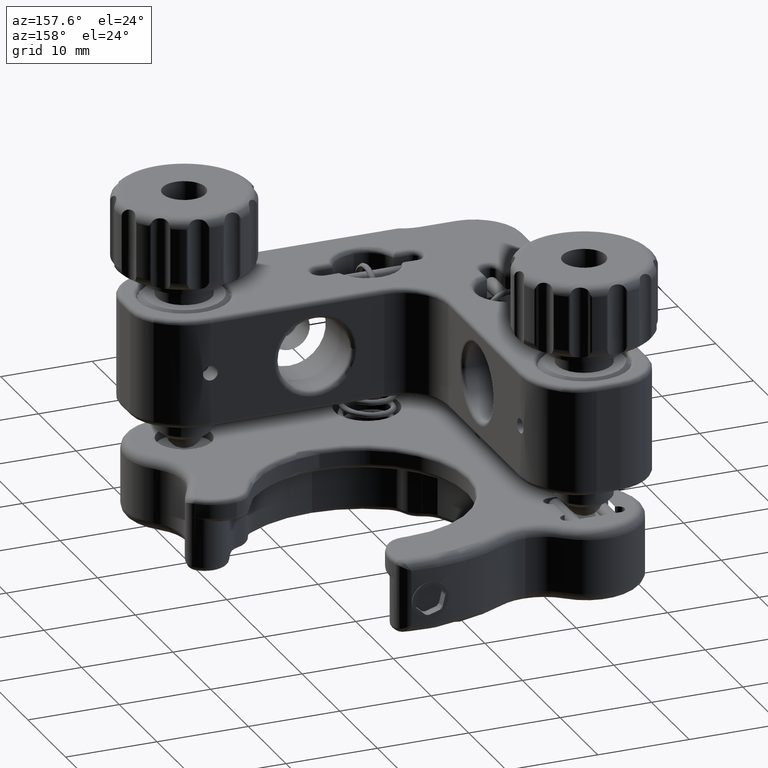
[diagram: clean part render]
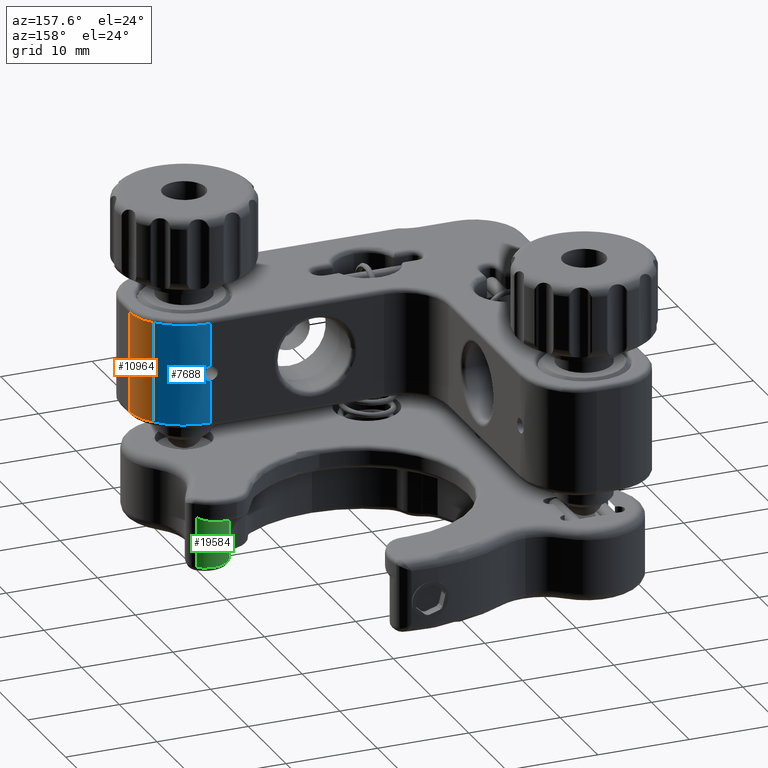
[diagram: same view with three faces highlighted in distinct colors, each labeled with its STEP entity id]
A machine part, auxiliary view with three faces highlighted in distinct colors.
Their STEP definitions:

[orange] entity #10964 — the highlighted cylindrical surface (partial cylindrical patch) has radius 5 mm, axis along (0, 0, 1).
#276 = LINE ( 'NONE', #14235, #3856 ) ;
#909 = CARTESIAN_POINT ( 'NONE',  ( -22.08220024130421422, 1.322875655532274930, 5.499999999999996447 ) ) ;
#1411 = CARTESIAN_POINT ( 'NONE',  ( -22.08220024130421422, 1.322875655532274042, -5.500000000000003553 ) ) ;
#1685 = VERTEX_POINT ( 'NONE', #5914 ) ;
#2959 = AXIS2_PLACEMENT_3D ( 'NONE', #15211, #12060, #3293 ) ;
#2986 = DIRECTION ( 'NONE',  ( 1.526985608128896422E-16, 6.608597787526282327E-17, 1.000000000000000000 ) ) ;
#3293 = DIRECTION ( 'NONE',  ( -1.000000000000000000, 1.301042606982607786E-16, 1.734723475976810546E-16 ) ) ;
#3583 = EDGE_CURVE ( 'NONE', #19852, #1685, #276, .T. ) ;
#3733 = EDGE_CURVE ( 'NONE', #19852, #22524, #17847, .T. ) ;
#3856 = VECTOR ( 'NONE', #7255, 1000.000000000000000 ) ;
#4984 = FACE_OUTER_BOUND ( 'NONE', #9783, .T. ) ;
#5914 = CARTESIAN_POINT ( 'NONE',  ( -17.08220024130422487, 1.322875655532276928, 5.499999999999995559 ) ) ;
#6081 = DIRECTION ( 'NONE',  ( 1.000000000000000000, -1.301042606982607786E-16, -1.734723475976810546E-16 ) ) ;
#6770 = CARTESIAN_POINT ( 'NONE',  ( -18.33220024130417158, 4.630064794362959368, -5.500000000000004441 ) ) ;
#7000 = ORIENTED_EDGE ( 'NONE', *, *, #16417, .T. ) ;
#7255 = DIRECTION ( 'NONE',  ( 1.526985608128896422E-16, 6.608597787526282327E-17, 1.000000000000000000 ) ) ;
#8278 = DIRECTION ( 'NONE',  ( -1.526985608128896422E-16, -6.608597787526282327E-17, -1.000000000000000000 ) ) ;
#9783 = EDGE_LOOP ( 'NONE', ( #17344, #7000, #16126, #11712 ) ) ;
#10964 = ADVANCED_FACE ( 'NONE', ( #4984 ), #17438, .T. ) ;
#11626 = AXIS2_PLACEMENT_3D ( 'NONE', #1411, #2986, #15131 ) ;
#11712 = ORIENTED_EDGE ( 'NONE', *, *, #3733, .T. ) ;
#12060 = DIRECTION ( 'NONE',  ( 1.526985608128896422E-16, 6.608597787526282327E-17, 1.000000000000000000 ) ) ;
#12315 = EDGE_CURVE ( 'NONE', #17947, #22524, #14858, .T. ) ;
#13936 = CARTESIAN_POINT ( 'NONE',  ( -18.33220024130417158, 4.630064794362959368, -6.000000000000004441 ) ) ;
#14235 = CARTESIAN_POINT ( 'NONE',  ( -17.08220024130422487, 1.322875655532276928, 5.999999999999995559 ) ) ;
#14858 = LINE ( 'NONE', #13936, #15556 ) ;
#15131 = DIRECTION ( 'NONE',  ( 1.000000000000000000, 7.806255641895646716E-16, -1.734723475976810546E-16 ) ) ;
#15211 = CARTESIAN_POINT ( 'NONE',  ( -22.08220024130421422, 1.322875655532274042, -6.000000000000003553 ) ) ;
#15556 = VECTOR ( 'NONE', #20565, 1000.000000000000000 ) ;
#16126 = ORIENTED_EDGE ( 'NONE', *, *, #3583, .F. ) ;
#16417 = EDGE_CURVE ( 'NONE', #17947, #1685, #19307, .T. ) ;
#17344 = ORIENTED_EDGE ( 'NONE', *, *, #12315, .F. ) ;
#17400 = CARTESIAN_POINT ( 'NONE',  ( -18.33220024130417158, 4.630064794362959368, 5.499999999999995559 ) ) ;
#17438 = CYLINDRICAL_SURFACE ( 'NONE', #2959, 4.999999999999990230 ) ;
#17847 = CIRCLE ( 'NONE', #11626, 4.999999999999990230 ) ;
#17947 = VERTEX_POINT ( 'NONE', #17400 ) ;
#18197 = CARTESIAN_POINT ( 'NONE',  ( -17.08220024130422487, 1.322875655532276040, -5.500000000000004441 ) ) ;
#18957 = AXIS2_PLACEMENT_3D ( 'NONE', #909, #8278, #6081 ) ;
#19307 = CIRCLE ( 'NONE', #18957, 4.999999999999990230 ) ;
#19852 = VERTEX_POINT ( 'NONE', #18197 ) ;
#20565 = DIRECTION ( 'NONE',  ( -1.526985608128896422E-16, -6.608597787526282327E-17, -1.000000000000000000 ) ) ;
#22524 = VERTEX_POINT ( 'NONE', #6770 ) ;

[blue] entity #7688 — the highlighted cylindrical surface (partial cylindrical patch) has radius 7 mm, axis along (0, 0, 1).
#136 = CARTESIAN_POINT ( 'NONE',  ( -23.58220024130417158, 6.999999999999984901, 0.7999999999999913847 ) ) ;
#146 = VERTEX_POINT ( 'NONE', #13658 ) ;
#250 = CARTESIAN_POINT ( 'NONE',  ( -23.47641542897964584, 6.999999999999984013, -0.7999999999999989342 ) ) ;
#470 = CARTESIAN_POINT ( 'NONE',  ( -22.88295176703258704, 6.965104065896867702, 0.4025504988256741745 ) ) ;
#1076 = DIRECTION ( 'NONE',  ( -1.000000000000000000, 1.110223024625155554E-16, 1.239088197126292789E-16 ) ) ;
#1690 = CIRCLE ( 'NONE', #11214, 6.999999999999988454 ) ;
#1879 = DIRECTION ( 'NONE',  ( 1.526985608128896422E-16, 6.608597787526282327E-17, 1.000000000000000000 ) ) ;
#2128 = DIRECTION ( 'NONE',  ( -1.526985608128896422E-16, -6.608597787526282327E-17, -1.000000000000000000 ) ) ;
#2412 = CARTESIAN_POINT ( 'NONE',  ( -23.58220024130417158, 6.999999999999984901, -5.500000000000003553 ) ) ;
#3549 = CARTESIAN_POINT ( 'NONE',  ( -22.78212526620150058, 6.954126835192298905, 0.1038509294795444265 ) ) ;
#3582 = CARTESIAN_POINT ( 'NONE',  ( -23.58220024130417158, 6.999999999999984901, -6.000000000000003553 ) ) ;
#3622 = B_SPLINE_CURVE_WITH_KNOTS ( 'NONE', 3,
 ( #16211, #250, #19768, #3987, #15885, #17587, #3660, #3549, #5475, #470, #9087, #14327, #11023, #136 ),
 .UNSPECIFIED., .F., .F.,
 ( 4, 2, 2, 2, 2, 2, 4 ),
 ( 0.000000000000000000, 0.0003128303503072536892, 0.0006256607006145073783, 0.001251321401229007384, 0.001564151751536257441, 0.001876982101843507281, 0.002502642802458007396 ),
 .UNSPECIFIED. ) ;
#3660 = CARTESIAN_POINT ( 'NONE',  ( -22.78235081350777236, 6.954152782026186586, -0.2094297452871578535 ) ) ;
#3987 = CARTESIAN_POINT ( 'NONE',  ( -23.17891469267242499, 6.989045649012258998, -0.6988233077634568025 ) ) ;
#5105 = EDGE_LOOP ( 'NONE', ( #13797, #7609, #6205, #5513, #8150, #8498 ) ) ;
#5475 = CARTESIAN_POINT ( 'NONE',  ( -22.80282754831038261, 6.956594086401753252, 0.2087427562612563514 ) ) ;
#5513 = ORIENTED_EDGE ( 'NONE', *, *, #15865, .T. ) ;
#5591 = DIRECTION ( 'NONE',  ( 1.526985608128896422E-16, 6.608597787526282327E-17, 1.000000000000000000 ) ) ;
#5924 = DIRECTION ( 'NONE',  ( 1.000000000000000000, -1.110223024625155554E-16, -1.239088197126292789E-16 ) ) ;
#6205 = ORIENTED_EDGE ( 'NONE', *, *, #12315, .T. ) ;
#6770 = CARTESIAN_POINT ( 'NONE',  ( -18.33220024130417158, 4.630064794362959368, -5.500000000000004441 ) ) ;
#7119 = EDGE_CURVE ( 'NONE', #9821, #21837, #9669, .T. ) ;
#7609 = ORIENTED_EDGE ( 'NONE', *, *, #19801, .T. ) ;
#7688 = ADVANCED_FACE ( 'NONE', ( #15467 ), #17145, .T. ) ;
#7705 = CARTESIAN_POINT ( 'NONE',  ( -23.58220024130417158, 6.999999999999984901, -6.000000000000003553 ) ) ;
#8150 = ORIENTED_EDGE ( 'NONE', *, *, #7119, .T. ) ;
#8498 = ORIENTED_EDGE ( 'NONE', *, *, #10617, .T. ) ;
#9087 = CARTESIAN_POINT ( 'NONE',  ( -22.94153080089044394, 6.971021852778878980, 0.4906018938186241796 ) ) ;
#9476 = CARTESIAN_POINT ( 'NONE',  ( -23.58220024130417158, 6.999999999999983125, -0.7999999999999989342 ) ) ;
#9669 = LINE ( 'NONE', #7705, #16791 ) ;
#9821 = VERTEX_POINT ( 'NONE', #2412 ) ;
#10617 = EDGE_CURVE ( 'NONE', #21837, #11521, #3622, .T. ) ;
#11023 = CARTESIAN_POINT ( 'NONE',  ( -23.37063099054763526, 6.999999999999985789, 0.7999999999999919398 ) ) ;
#11214 = AXIS2_PLACEMENT_3D ( 'NONE', #19738, #20079, #5924 ) ;
#11521 = VERTEX_POINT ( 'NONE', #19429 ) ;
#11848 = CIRCLE ( 'NONE', #22092, 6.999999999999988454 ) ;
#12055 = AXIS2_PLACEMENT_3D ( 'NONE', #16801, #15037, #1076 ) ;
#12315 = EDGE_CURVE ( 'NONE', #17947, #22524, #14858, .T. ) ;
#13658 = CARTESIAN_POINT ( 'NONE',  ( -23.58220024130417158, 6.999999999999984901, 5.499999999999996447 ) ) ;
#13797 = ORIENTED_EDGE ( 'NONE', *, *, #21595, .T. ) ;
#13936 = CARTESIAN_POINT ( 'NONE',  ( -18.33220024130417158, 4.630064794362959368, -6.000000000000004441 ) ) ;
#14327 = CARTESIAN_POINT ( 'NONE',  ( -23.16535501078045911, 6.989181072843399178, 0.7147239006662130523 ) ) ;
#14858 = LINE ( 'NONE', #13936, #15556 ) ;
#15037 = DIRECTION ( 'NONE',  ( 1.526985608128896422E-16, 6.608597787526282327E-17, 1.000000000000000000 ) ) ;
#15467 = FACE_OUTER_BOUND ( 'NONE', #5105, .T. ) ;
#15556 = VECTOR ( 'NONE', #20565, 1000.000000000000000 ) ;
#15801 = LINE ( 'NONE', #3582, #17631 ) ;
#15865 = EDGE_CURVE ( 'NONE', #22524, #9821, #1690, .T. ) ;
#15885 = CARTESIAN_POINT ( 'NONE',  ( -23.09022870423384077, 6.983082081990077405, -0.6394026485472179555 ) ) ;
#16211 = CARTESIAN_POINT ( 'NONE',  ( -23.58220024130417158, 6.999999999999983125, -0.7999999999999989342 ) ) ;
#16791 = VECTOR ( 'NONE', #5591, 1000.000000000000000 ) ;
#16801 = CARTESIAN_POINT ( 'NONE',  ( -23.58220024130417158, -2.103483767612747281E-15, -5.999999999999995559 ) ) ;
#17145 = CYLINDRICAL_SURFACE ( 'NONE', #12055, 6.999999999999988454 ) ;
#17400 = CARTESIAN_POINT ( 'NONE',  ( -18.33220024130417158, 4.630064794362959368, 5.499999999999995559 ) ) ;
#17587 = CARTESIAN_POINT ( 'NONE',  ( -22.86904864742847110, 6.965148974181776254, -0.4182125837161703719 ) ) ;
#17631 = VECTOR ( 'NONE', #1879, 1000.000000000000000 ) ;
#17753 = CARTESIAN_POINT ( 'NONE',  ( -23.58220024130417158, -1.343495022047225935E-15, 5.500000000000004441 ) ) ;
#17947 = VERTEX_POINT ( 'NONE', #17400 ) ;
#19220 = DIRECTION ( 'NONE',  ( 1.000000000000000000, -1.110223024625155554E-16, -1.239088197126292789E-16 ) ) ;
#19429 = CARTESIAN_POINT ( 'NONE',  ( -23.58220024130417158, 6.999999999999984901, 0.7999999999999913847 ) ) ;
#19738 = CARTESIAN_POINT ( 'NONE',  ( -23.58220024130417158, -2.070440778675113663E-15, -5.499999999999995559 ) ) ;
#19768 = CARTESIAN_POINT ( 'NONE',  ( -23.37261866448168490, 6.997533414023043186, -0.7791462069889520947 ) ) ;
#19801 = EDGE_CURVE ( 'NONE', #146, #17947, #11848, .T. ) ;
#20079 = DIRECTION ( 'NONE',  ( 1.526985608128896422E-16, 6.608597787526282327E-17, 1.000000000000000000 ) ) ;
#20565 = DIRECTION ( 'NONE',  ( -1.526985608128896422E-16, -6.608597787526282327E-17, -1.000000000000000000 ) ) ;
#21595 = EDGE_CURVE ( 'NONE', #11521, #146, #15801, .T. ) ;
#21837 = VERTEX_POINT ( 'NONE', #9476 ) ;
#22092 = AXIS2_PLACEMENT_3D ( 'NONE', #17753, #2128, #19220 ) ;
#22524 = VERTEX_POINT ( 'NONE', #6770 ) ;

[green] entity #19584 — the highlighted cylindrical surface (edge-blend (fillet) strip) has radius 2.5 mm, axis along (-0, -0, -1).
#168 = CARTESIAN_POINT ( 'NONE',  ( -20.80602222884467523, 15.39607574278450919, -12.50000000000000711 ) ) ;
#249 = ORIENTED_EDGE ( 'NONE', *, *, #14423, .T. ) ;
#493 = CARTESIAN_POINT ( 'NONE',  ( -19.50756677857046029, 15.20703411873012101, -12.22745408657855748 ) ) ;
#1057 = DIRECTION ( 'NONE',  ( 1.387778780781441534E-15, -1.000000000000000000, 0.000000000000000000 ) ) ;
#2224 = CARTESIAN_POINT ( 'NONE',  ( -18.88693675477873413, 14.81348310554441206, -12.00000000000000888 ) ) ;
#2404 = ORIENTED_EDGE ( 'NONE', *, *, #14866, .T. ) ;
#3028 = VERTEX_POINT ( 'NONE', #17755 ) ;
#3090 = CARTESIAN_POINT ( 'NONE',  ( -22.78169849364460120, 13.93693818515151506, -12.50000000000000355 ) ) ;
#3824 = VERTEX_POINT ( 'NONE', #3090 ) ;
#3922 = VERTEX_POINT ( 'NONE', #14316 ) ;
#3965 = CARTESIAN_POINT ( 'NONE',  ( -18.88693675477873413, 14.81348310554444048, -17.50000000000000711 ) ) ;
#4033 = EDGE_CURVE ( 'NONE', #3028, #5989, #7018, .T. ) ;
#4863 = B_SPLINE_CURVE_WITH_KNOTS ( 'NONE', 3,
 ( #17853, #168, #17961, #17732, #16128, #7381, #493, #5387, #7156, #21394, #14354, #2224 ),
 .UNSPECIFIED., .F., .F.,
 ( 4, 2, 2, 2, 2, 4 ),
 ( 0.000000000000000000, 0.0005771494025329073968, 0.001154298805065814794, 0.001731448207598722299, 0.002020022908865171281, 0.002308597610131620046 ),
 .UNSPECIFIED. ) ;
#5387 = CARTESIAN_POINT ( 'NONE',  ( -19.26294469567177003, 15.07899374809273851, -12.14431897425931872 ) ) ;
#5989 = VERTEX_POINT ( 'NONE', #3965 ) ;
#6325 = CARTESIAN_POINT ( 'NONE',  ( -20.50382779963358360, 12.90674155277220159, -17.50000000000000711 ) ) ;
#6503 = CIRCLE ( 'NONE', #17504, 2.500000000000007550 ) ;
#6682 = DIRECTION ( 'NONE',  ( 1.665334536937734811E-16, 6.342465669864681941E-17, 1.000000000000000000 ) ) ;
#7018 = LINE ( 'NONE', #14093, #17086 ) ;
#7113 = DIRECTION ( 'NONE',  ( 0.000000000000000000, -1.000000000000000000, 0.000000000000000000 ) ) ;
#7156 = CARTESIAN_POINT ( 'NONE',  ( -19.18404958419593598, 15.03198152161966661, -12.11600990510033959 ) ) ;
#7381 = CARTESIAN_POINT ( 'NONE',  ( -19.68316834164495077, 15.27560685393831719, -12.28108891813730352 ) ) ;
#7978 = ORIENTED_EDGE ( 'NONE', *, *, #15515, .F. ) ;
#8148 = CARTESIAN_POINT ( 'NONE',  ( -22.78169849364459409, 13.93693818515154703, 17.35632000128664032 ) ) ;
#8842 = DIRECTION ( 'NONE',  ( -1.665334536937734811E-16, -6.342465669864681941E-17, -1.000000000000000000 ) ) ;
#10519 = CARTESIAN_POINT ( 'NONE',  ( -20.50382779963358360, 12.90674155277217494, -12.50000000000000355 ) ) ;
#10639 = DIRECTION ( 'NONE',  ( 1.665334536937734811E-16, 6.342465669864681941E-17, 1.000000000000000000 ) ) ;
#11094 = VECTOR ( 'NONE', #20321, 1000.000000000000000 ) ;
#13416 = ORIENTED_EDGE ( 'NONE', *, *, #4033, .T. ) ;
#13941 = DIRECTION ( 'NONE',  ( 1.387778780781441534E-15, -1.000000000000000000, 0.000000000000000000 ) ) ;
#14093 = CARTESIAN_POINT ( 'NONE',  ( -18.88693675477872702, 14.81348310554444403, 17.35632000128664032 ) ) ;
#14264 = ORIENTED_EDGE ( 'NONE', *, *, #19012, .F. ) ;
#14316 = CARTESIAN_POINT ( 'NONE',  ( -22.78169849364460120, 13.93693818515154348, -17.50000000000000711 ) ) ;
#14354 = CARTESIAN_POINT ( 'NONE',  ( -18.95688778176886302, 14.87280063022639176, -12.02900282476376326 ) ) ;
#14423 = EDGE_CURVE ( 'NONE', #16865, #3028, #4863, .T. ) ;
#14734 = AXIS2_PLACEMENT_3D ( 'NONE', #10519, #10639, #13941 ) ;
#14866 = EDGE_CURVE ( 'NONE', #5989, #3922, #6503, .T. ) ;
#15030 = EDGE_LOOP ( 'NONE', ( #13416, #2404, #7978, #14264, #249 ) ) ;
#15065 = CARTESIAN_POINT ( 'NONE',  ( -20.99738822502068913, 15.35753695559382415, -12.50000000000000533 ) ) ;
#15118 = CIRCLE ( 'NONE', #14734, 2.500000000000007550 ) ;
#15515 = EDGE_CURVE ( 'NONE', #3824, #3922, #19859, .T. ) ;
#16128 = CARTESIAN_POINT ( 'NONE',  ( -20.04489842117043708, 15.37136902698375884, -12.37577414256406172 ) ) ;
#16865 = VERTEX_POINT ( 'NONE', #15065 ) ;
#17086 = VECTOR ( 'NONE', #19878, 1000.000000000000000 ) ;
#17112 = CYLINDRICAL_SURFACE ( 'NONE', #18067, 2.500000000000007550 ) ;
#17504 = AXIS2_PLACEMENT_3D ( 'NONE', #6325, #6682, #1057 ) ;
#17732 = CARTESIAN_POINT ( 'NONE',  ( -20.23339227499899451, 15.39940437962877873, -12.41762599804970613 ) ) ;
#17755 = CARTESIAN_POINT ( 'NONE',  ( -18.88693675477873413, 14.81348310554441206, -12.00000000000000888 ) ) ;
#17853 = CARTESIAN_POINT ( 'NONE',  ( -20.99738822502068913, 15.35753695559382415, -12.50000000000000533 ) ) ;
#17961 = CARTESIAN_POINT ( 'NONE',  ( -20.61531610111857304, 15.41155166533742893, -12.47959260611374432 ) ) ;
#18067 = AXIS2_PLACEMENT_3D ( 'NONE', #21009, #8842, #7113 ) ;
#19012 = EDGE_CURVE ( 'NONE', #16865, #3824, #15118, .T. ) ;
#19584 = ADVANCED_FACE ( 'NONE', ( #20691 ), #17112, .T. ) ;
#19859 = LINE ( 'NONE', #8148, #11094 ) ;
#19878 = DIRECTION ( 'NONE',  ( -1.665334536937734811E-16, -6.342465669864681941E-17, -1.000000000000000000 ) ) ;
#20321 = DIRECTION ( 'NONE',  ( -1.665334536937734811E-16, -6.342465669864681941E-17, -1.000000000000000000 ) ) ;
#20691 = FACE_OUTER_BOUND ( 'NONE', #15030, .T. ) ;
#21009 = CARTESIAN_POINT ( 'NONE',  ( -20.50382779963357649, 12.90674155277220514, 17.35632000128664032 ) ) ;
#21394 = CARTESIAN_POINT ( 'NONE',  ( -19.03145306795623881, 14.92925783519087446, -12.05853352454875527 ) ) ;